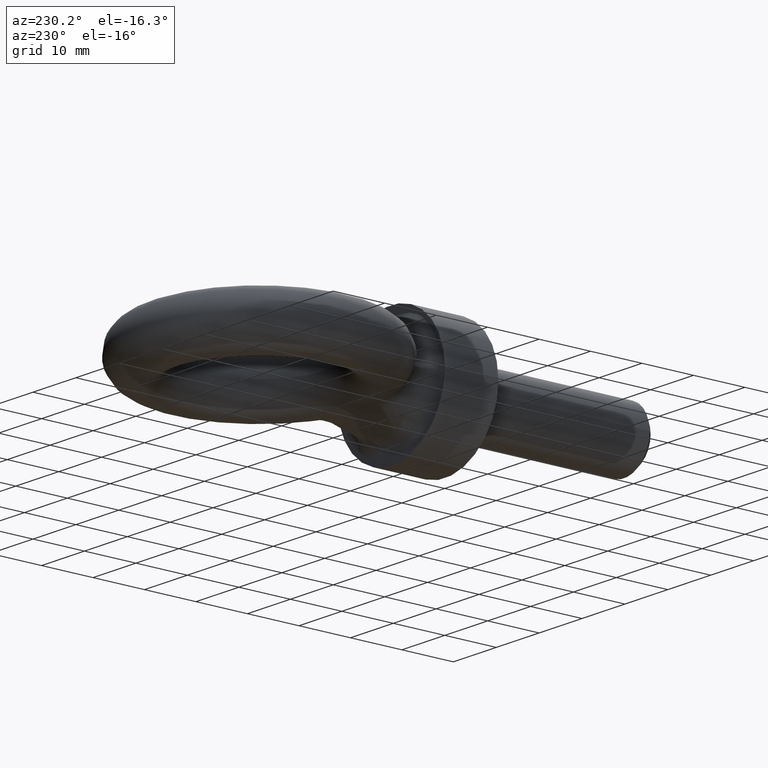
[diagram: clean part render]
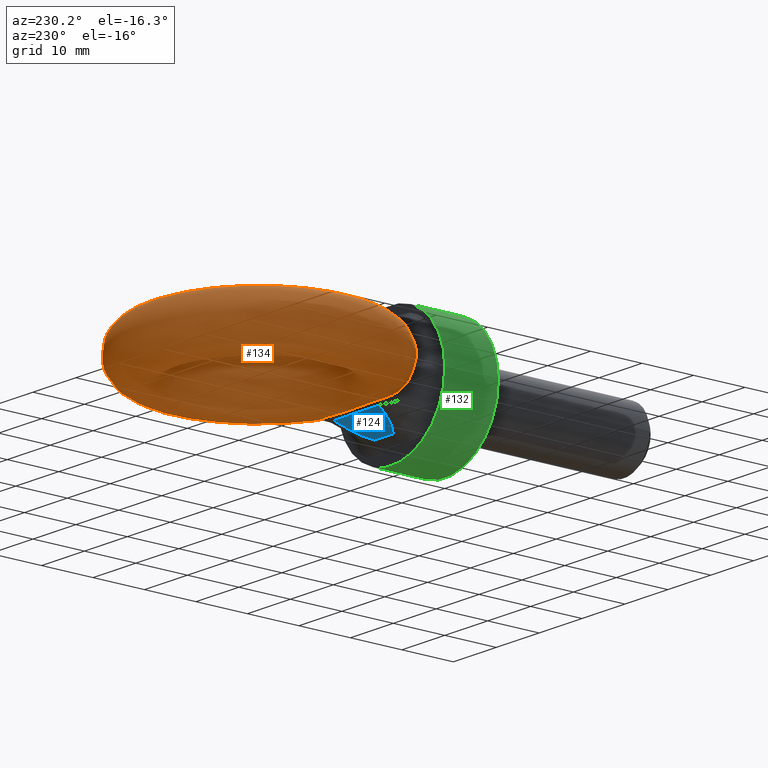
[diagram: same view with three faces highlighted in distinct colors, each labeled with its STEP entity id]
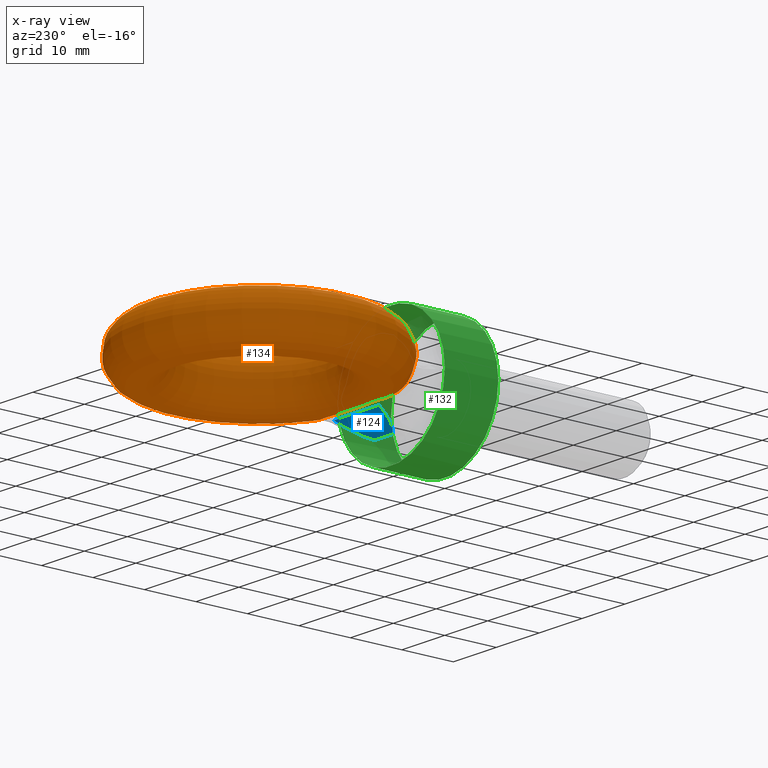
[diagram: x-ray of the same camera — body ghosted, the three highlighted faces saturated]
A machine part, auxiliary view with three faces highlighted in distinct colors.
The next image is the same camera in x-ray (body ghosted, the three faces saturated) — at least one of them is partly hidden behind the body in this view.
Their STEP definitions:

[orange] entity #134 — the highlighted toroidal blend (fillet) surface has major radius 18.25 mm and minor (blend) radius 5.25 mm.
#75=TOROIDAL_SURFACE('',#689,18.25,5.25);
#134=ADVANCED_FACE('',(#194),#75,.T.);
#194=FACE_OUTER_BOUND('',#239,.T.);
#239=EDGE_LOOP('',(#373,#374,#375,#376,#377,#378,#379,#380,#381,#382,#383,
#384));
#373=ORIENTED_EDGE('',*,*,#542,.T.);
#374=ORIENTED_EDGE('',*,*,#584,.T.);
#375=ORIENTED_EDGE('',*,*,#585,.T.);
#376=ORIENTED_EDGE('',*,*,#586,.T.);
#377=ORIENTED_EDGE('',*,*,#587,.T.);
#378=ORIENTED_EDGE('',*,*,#588,.T.);
#379=ORIENTED_EDGE('',*,*,#533,.T.);
#380=ORIENTED_EDGE('',*,*,#589,.T.);
#381=ORIENTED_EDGE('',*,*,#590,.T.);
#382=ORIENTED_EDGE('',*,*,#591,.T.);
#383=ORIENTED_EDGE('',*,*,#592,.T.);
#384=ORIENTED_EDGE('',*,*,#593,.T.);
#483=VERTEX_POINT('',#883);
#484=VERTEX_POINT('',#888);
#491=VERTEX_POINT('',#923);
#492=VERTEX_POINT('',#928);
#523=VERTEX_POINT('',#1228);
#524=VERTEX_POINT('',#1233);
#525=VERTEX_POINT('',#1240);
#526=VERTEX_POINT('',#1247);
#527=VERTEX_POINT('',#1276);
#528=VERTEX_POINT('',#1281);
#529=VERTEX_POINT('',#1288);
#530=VERTEX_POINT('',#1295);
#533=EDGE_CURVE('',#484,#483,#619,.T.);
#542=EDGE_CURVE('',#492,#491,#622,.T.);
#584=EDGE_CURVE('',#491,#523,#642,.T.);
#585=EDGE_CURVE('',#523,#524,#643,.T.);
#586=EDGE_CURVE('',#524,#525,#644,.T.);
#587=EDGE_CURVE('',#525,#526,#645,.T.);
#588=EDGE_CURVE('',#526,#484,#646,.T.);
#589=EDGE_CURVE('',#483,#527,#647,.T.);
#590=EDGE_CURVE('',#527,#528,#648,.T.);
#591=EDGE_CURVE('',#528,#529,#649,.T.);
#592=EDGE_CURVE('',#529,#530,#650,.T.);
#593=EDGE_CURVE('',#530,#492,#651,.T.);
#619=B_SPLINE_CURVE_WITH_KNOTS('',3,(#884,#885,#886,#887),.UNSPECIFIED.,
 .F.,.F.,(4,4),(0.,1.),.UNSPECIFIED.);
#622=B_SPLINE_CURVE_WITH_KNOTS('',3,(#924,#925,#926,#927),.UNSPECIFIED.,
 .F.,.F.,(4,4),(0.,1.),.UNSPECIFIED.);
#642=B_SPLINE_CURVE_WITH_KNOTS('',3,(#1206,#1207,#1208,#1209,#1210,#1211,
#1212,#1213,#1214,#1215,#1216,#1217,#1218,#1219,#1220,#1221,#1222,#1223,
#1224,#1225,#1226,#1227),.UNSPECIFIED.,.F.,.F.,(4,3,3,3,3,3,3,4),(0.,0.0844317473210612,
0.304581855445916,0.498420281267643,0.516260411417847,0.686905413114511,
0.727982392938424,1.),.UNSPECIFIED.);
#643=B_SPLINE_CURVE_WITH_KNOTS('',3,(#1229,#1230,#1231,#1232),
 .UNSPECIFIED.,.F.,.F.,(4,4),(0.,1.),.UNSPECIFIED.);
#644=B_SPLINE_CURVE_WITH_KNOTS('',3,(#1234,#1235,#1236,#1237,#1238,#1239),
 .UNSPECIFIED.,.F.,.F.,(4,2,4),(0.,0.5,1.),.UNSPECIFIED.);
#645=B_SPLINE_CURVE_WITH_KNOTS('',3,(#1241,#1242,#1243,#1244,#1245,#1246),
 .UNSPECIFIED.,.F.,.F.,(4,2,4),(0.,0.5,1.),.UNSPECIFIED.);
#646=B_SPLINE_CURVE_WITH_KNOTS('',3,(#1248,#1249,#1250,#1251,#1252,#1253),
 .UNSPECIFIED.,.F.,.F.,(4,2,4),(0.,0.5,1.),.UNSPECIFIED.);
#647=B_SPLINE_CURVE_WITH_KNOTS('',3,(#1254,#1255,#1256,#1257,#1258,#1259,
#1260,#1261,#1262,#1263,#1264,#1265,#1266,#1267,#1268,#1269,#1270,#1271,
#1272,#1273,#1274,#1275),.UNSPECIFIED.,.F.,.F.,(4,3,3,3,3,3,3,4),(0.,0.172858284610541,
0.363484195181928,0.524702837725398,0.559235223550434,0.721650931491682,
0.772282589975963,1.),.UNSPECIFIED.);
#648=B_SPLINE_CURVE_WITH_KNOTS('',3,(#1277,#1278,#1279,#1280),
 .UNSPECIFIED.,.F.,.F.,(4,4),(0.,1.),.UNSPECIFIED.);
#649=B_SPLINE_CURVE_WITH_KNOTS('',3,(#1282,#1283,#1284,#1285,#1286,#1287),
 .UNSPECIFIED.,.F.,.F.,(4,2,4),(0.,0.5,1.),.UNSPECIFIED.);
#650=B_SPLINE_CURVE_WITH_KNOTS('',3,(#1289,#1290,#1291,#1292,#1293,#1294),
 .UNSPECIFIED.,.F.,.F.,(4,2,4),(0.,0.5,1.),.UNSPECIFIED.);
#651=B_SPLINE_CURVE_WITH_KNOTS('',3,(#1296,#1297,#1298,#1299,#1300,#1301),
 .UNSPECIFIED.,.F.,.F.,(4,2,4),(0.,0.5,1.),.UNSPECIFIED.);
#689=AXIS2_PLACEMENT_3D('',#1302,#803,#804);
#803=DIRECTION('',(0.,0.,-1.));
#804=DIRECTION('',(-1.,0.,0.));
#883=CARTESIAN_POINT('',(10.1751658689635,15.2106807538112,1.98774862684781));
#884=CARTESIAN_POINT('',(9.12680839878912,16.5594193484176,4.16898889559012));
#885=CARTESIAN_POINT('',(9.51017883296229,15.9164642360037,3.59902631995501));
#886=CARTESIAN_POINT('',(9.92017274677964,15.478170038554,2.84820347276941));
#887=CARTESIAN_POINT('',(10.1751658689635,15.2106807538112,1.98774862684782));
#888=CARTESIAN_POINT('',(9.12680839878912,16.5594193484176,4.16898889559012));
#923=CARTESIAN_POINT('',(-10.2092429928975,15.2327507880229,-1.81008757908646));
#924=CARTESIAN_POINT('',(-9.13152703209519,16.6053220422383,-4.14452171013093));
#925=CARTESIAN_POINT('',(-9.53483343757913,15.9332567634735,-3.53793230910773));
#926=CARTESIAN_POINT('',(-9.96418158107147,15.4866501273962,-2.72573611420768));
#927=CARTESIAN_POINT('',(-10.2092429928975,15.2327507880229,-1.81008757908646));
#928=CARTESIAN_POINT('',(-9.13152703209519,16.6053220422383,-4.14452171013093));
#1206=CARTESIAN_POINT('',(-10.2092429928975,15.2327507880229,-1.81008757908646));
#1207=CARTESIAN_POINT('',(-10.2947225303325,15.2421647414669,-1.72970328025904));
#1208=CARTESIAN_POINT('',(-10.3768083563959,15.2512720284918,-1.6454481778784));
#1209=CARTESIAN_POINT('',(-10.4542973578134,15.2599190147135,-1.55725694460596));
#1210=CARTESIAN_POINT('',(-10.654180216589,15.282223913398,-1.32976768157543));
#1211=CARTESIAN_POINT('',(-10.8268904719467,15.3018550426031,-1.07061569303797));
#1212=CARTESIAN_POINT('',(-10.9424413288205,15.3150617350583,-0.790123958254311));
#1213=CARTESIAN_POINT('',(-11.0439366700155,15.3266619757927,-0.543751018282601));
#1214=CARTESIAN_POINT('',(-11.1022233847588,15.3333901627485,-0.273210478975317));
#1215=CARTESIAN_POINT('',(-11.1031043844528,15.3334915871443,-0.00649956998896742));
#1216=CARTESIAN_POINT('',(-11.1031871052505,15.3335011103109,0.0185430484171998));
#1217=CARTESIAN_POINT('',(-11.1027914660236,15.333455560969,0.0435918811405311));
#1218=CARTESIAN_POINT('',(-11.1019185099568,15.33335506785,0.0686192165739424));
#1219=CARTESIAN_POINT('',(-11.0936963924626,15.3324085525972,0.304344358232179));
#1220=CARTESIAN_POINT('',(-11.0411314279582,15.3263471884072,0.541351935419857));
#1221=CARTESIAN_POINT('',(-10.9544134166439,15.3164304416693,0.760478579543384));
#1222=CARTESIAN_POINT('',(-10.9332567738041,15.3140110472934,0.813939032293196));
#1223=CARTESIAN_POINT('',(-10.9100654611072,15.3113624908358,0.866623079653799));
#1224=CARTESIAN_POINT('',(-10.8850580389048,15.3085119071968,0.918372282752246));
#1225=CARTESIAN_POINT('',(-10.7226109833609,15.2899946480013,1.25453270752718));
#1226=CARTESIAN_POINT('',(-10.4806875878877,15.262645273376,1.55482317203286));
#1227=CARTESIAN_POINT('',(-10.2092429928824,15.2327507880213,1.81008757910062));
#1228=CARTESIAN_POINT('',(-10.2092429928843,15.2327507880366,1.81008757913571));
#1229=CARTESIAN_POINT('',(-10.2092429928843,15.2327507880366,1.81008757913571));
#1230=CARTESIAN_POINT('',(-9.96415163098847,15.4866811576039,2.72584801980319));
#1231=CARTESIAN_POINT('',(-9.53649521315012,15.9304875992669,3.53543293038592));
#1232=CARTESIAN_POINT('',(-9.13152703209518,16.6053220422383,4.14452171013093));
#1233=CARTESIAN_POINT('',(-9.13152703209518,16.6053220422383,4.14452171013094));
#1234=CARTESIAN_POINT('',(-9.13152703209518,16.6053220422383,4.14452171013093));
#1235=CARTESIAN_POINT('',(-8.80656744206388,17.1468310648873,4.6332742823528));
#1236=CARTESIAN_POINT('',(-8.23752717506868,17.65999926443,4.93798496737469));
#1237=CARTESIAN_POINT('',(-6.86465082953896,18.3551850102802,5.23743672720217));
#1238=CARTESIAN_POINT('',(-6.04929483048205,18.5174604033747,5.24574484612284));
#1239=CARTESIAN_POINT('',(-5.25725745016382,18.4359634411546,5.24888602379858));
#1240=CARTESIAN_POINT('',(-5.25725745016382,18.4359634411546,5.24888602379858));
#1241=CARTESIAN_POINT('',(-5.25725745016382,18.4359634411546,5.24888602379858));
#1242=CARTESIAN_POINT('',(-3.50870571920381,18.2560456015436,5.2558206859732));
#1243=CARTESIAN_POINT('',(-1.75443693681847,18.2119517395293,5.23036580910344));
#1244=CARTESIAN_POINT('',(1.75790939574807,18.2086357861418,5.22923333472979));
#1245=CARTESIAN_POINT('',(3.5123479698694,18.2481876883925,5.25427686885439));
#1246=CARTESIAN_POINT('',(5.26165407978908,18.4195873396341,5.24943414642928));
#1247=CARTESIAN_POINT('',(5.26165407978907,18.4195873396341,5.24943414642928));
#1248=CARTESIAN_POINT('',(5.26165407978907,18.4195873396341,5.24943414642928));
#1249=CARTESIAN_POINT('',(6.05279634133119,18.4971046517511,5.24724397379472));
#1250=CARTESIAN_POINT('',(6.85614102051733,18.3329007585816,5.24359846573583));
#1251=CARTESIAN_POINT('',(8.23889045003551,17.6207000249211,4.95073549139836));
#1252=CARTESIAN_POINT('',(8.8020050844068,17.1041508480221,4.65187885563488));
#1253=CARTESIAN_POINT('',(9.12680839878912,16.5594193484176,4.16898889559012));
#1254=CARTESIAN_POINT('',(10.1751658689635,15.2106807538112,1.98774862684781));
#1255=CARTESIAN_POINT('',(10.3828693830783,15.2332956256198,1.81575860764232));
#1256=CARTESIAN_POINT('',(10.5769316828252,15.2548438222433,1.62379597093491));
#1257=CARTESIAN_POINT('',(10.7430394181909,15.2734955152738,1.41097425327519));
#1258=CARTESIAN_POINT('',(10.9249767670006,15.2939246637015,1.1778712072619));
#1259=CARTESIAN_POINT('',(11.0765134955674,15.3112268239368,0.913192329669781));
#1260=CARTESIAN_POINT('',(11.1683853375131,15.3217552608477,0.631582145671107));
#1261=CARTESIAN_POINT('',(11.2460908151417,15.330660244154,0.393395413052312));
#1262=CARTESIAN_POINT('',(11.2817706676955,15.3347817197351,0.136373897332324));
#1263=CARTESIAN_POINT('',(11.267275577782,15.3331132260796,-0.113900887802176));
#1264=CARTESIAN_POINT('',(11.2641160345062,15.3327495389317,-0.168454120599337));
#1265=CARTESIAN_POINT('',(11.2586827706714,15.3321241684495,-0.222920131410865));
#1266=CARTESIAN_POINT('',(11.25104225885,15.3312453199682,-0.277022075878036));
#1267=CARTESIAN_POINT('',(11.2156596720498,15.3271754443629,-0.52756376613753));
#1268=CARTESIAN_POINT('',(11.1306339677975,15.3173955974433,-0.773822358306856));
#1269=CARTESIAN_POINT('',(11.0126203241144,15.3039684684542,-0.99727732470042));
#1270=CARTESIAN_POINT('',(10.9753516210904,15.2997281817623,-1.06784439238726));
#1271=CARTESIAN_POINT('',(10.9346974011096,15.2951139136688,-1.13668409629671));
#1272=CARTESIAN_POINT('',(10.8912281787426,15.2901968668221,-1.20356381411422));
#1273=CARTESIAN_POINT('',(10.698149938483,15.2683567072621,-1.50062498802321));
#1274=CARTESIAN_POINT('',(10.4476110330423,15.24034473175,-1.76214893393157));
#1275=CARTESIAN_POINT('',(10.1751658689478,15.2106807538095,-1.98774862686082));
#1276=CARTESIAN_POINT('',(10.1751658689488,15.2106807538267,-1.98774862689752));
#1277=CARTESIAN_POINT('',(10.1751658689488,15.2106807538266,-1.98774862689752));
#1278=CARTESIAN_POINT('',(9.92181744953446,15.4764447356931,-2.84265354871995));
#1279=CARTESIAN_POINT('',(9.51170462604495,15.9139053102871,-3.59675790048975));
#1280=CARTESIAN_POINT('',(9.12680839878912,16.5594193484176,-4.16898889559011));
#1281=CARTESIAN_POINT('',(9.12680839878912,16.5594193484176,-4.16898889559011));
#1282=CARTESIAN_POINT('',(9.12680839878912,16.5594193484176,-4.16898889559011));
#1283=CARTESIAN_POINT('',(8.80168070454394,17.1046948693459,-4.65236111604304));
#1284=CARTESIAN_POINT('',(8.23459330073939,17.6221726727106,-4.95110855406581));
#1285=CARTESIAN_POINT('',(6.86713774140462,18.3279738015473,-5.24180382659267));
#1286=CARTESIAN_POINT('',(6.05350324974561,18.4971739157038,-5.24724201681234));
#1287=CARTESIAN_POINT('',(5.26165407978906,18.4195873396341,-5.24943414642928));
#1288=CARTESIAN_POINT('',(5.26165407978906,18.4195873396341,-5.24943414642928));
#1289=CARTESIAN_POINT('',(5.26165407978906,18.4195873396341,-5.24943414642928));
#1290=CARTESIAN_POINT('',(3.51234728622489,18.248187621408,-5.25427687074696));
#1291=CARTESIAN_POINT('',(1.75790941599506,18.2086358104435,-5.22923334301907));
#1292=CARTESIAN_POINT('',(-1.75443455266028,18.2119517129578,-5.23036580003898));
#1293=CARTESIAN_POINT('',(-3.50870646972062,18.2560456787683,-5.25582068299669));
#1294=CARTESIAN_POINT('',(-5.25725745016382,18.4359634411546,-5.24888602379858));
#1295=CARTESIAN_POINT('',(-5.25725745016382,18.4359634411546,-5.24888602379858));
#1296=CARTESIAN_POINT('',(-5.25725745016382,18.4359634411546,-5.24888602379858));
#1297=CARTESIAN_POINT('',(-6.04856813964922,18.5173856302682,-5.24574772813962));
#1298=CARTESIAN_POINT('',(-6.8530426542071,18.3602654681186,-5.23938281062005));
#1299=CARTESIAN_POINT('',(-8.24197695083889,17.658539516691,-4.9375972604449));
#1300=CARTESIAN_POINT('',(-8.80688940925711,17.1462945423613,-4.63279003046839));
#1301=CARTESIAN_POINT('',(-9.13152703209518,16.6053220422383,-4.14452171013093));
#1302=CARTESIAN_POINT('',(0.0837289890841773,36.,0.));

[blue] entity #124 — the highlighted planar face has unit normal (0, 0.4545, -0.8908).
#89=PLANE('',#674);
#94=LINE('',#974,#98);
#98=VECTOR('',#768,1.);
#115=ELLIPSE('',#672,13.2021816378961,6.);
#116=ELLIPSE('',#673,13.2021816378961,6.);
#124=ADVANCED_FACE('',(#187),#89,.T.);
#187=FACE_OUTER_BOUND('',#226,.T.);
#226=EDGE_LOOP('',(#331,#332,#333,#334));
#331=ORIENTED_EDGE('',*,*,#553,.T.);
#332=ORIENTED_EDGE('',*,*,#554,.T.);
#333=ORIENTED_EDGE('',*,*,#555,.T.);
#334=ORIENTED_EDGE('',*,*,#556,.T.);
#501=VERTEX_POINT('',#972);
#502=VERTEX_POINT('',#973);
#503=VERTEX_POINT('',#975);
#504=VERTEX_POINT('',#977);
#553=EDGE_CURVE('',#501,#502,#115,.T.);
#554=EDGE_CURVE('',#502,#503,#94,.T.);
#555=EDGE_CURVE('',#503,#504,#116,.T.);
#556=EDGE_CURVE('',#504,#501,#625,.T.);
#625=B_SPLINE_CURVE_WITH_KNOTS('',3,(#978,#979,#980,#981,#982,#983,#984),
 .UNSPECIFIED.,.F.,.F.,(4,3,4),(0.,0.499937293540942,1.),.UNSPECIFIED.);
#672=AXIS2_PLACEMENT_3D('',#971,#766,#767);
#673=AXIS2_PLACEMENT_3D('',#976,#769,#770);
#674=AXIS2_PLACEMENT_3D('',#985,#771,#772);
#766=DIRECTION('',(0.,0.454470341687874,-0.890761869708233));
#767=DIRECTION('',(-1.09804000302255E-18,0.890761869708233,0.454470341687874));
#768=DIRECTION('',(-1.,-9.780921661068E-19,-4.99026615360612E-19));
#769=DIRECTION('',(0.,0.454470341687874,-0.890761869708233));
#770=DIRECTION('',(-1.09804000302255E-18,0.890761869708233,0.454470341687874));
#771=DIRECTION('',(0.,0.454470341687874,-0.890761869708233));
#772=DIRECTION('',(0.,0.890761869708233,0.454470341687874));
#971=CARTESIAN_POINT('',(-3.60809317146638E-18,22.8023202061156,-2.6722856091247));
#972=CARTESIAN_POINT('',(5.27254256580204,17.1896334291468,-5.53590131165981));
#973=CARTESIAN_POINT('',(2.16160478669443,11.8320153530693,-8.2693799219034));
#974=CARTESIAN_POINT('',(25.,11.8320153530693,-8.26937992190341));
#975=CARTESIAN_POINT('',(-2.16160478669443,11.8320153530693,-8.2693799219034));
#976=CARTESIAN_POINT('',(-3.60809317146638E-18,22.8023202061156,-2.6722856091247));
#977=CARTESIAN_POINT('',(-5.27298902615248,17.191244909681,-5.53507912771376));
#978=CARTESIAN_POINT('',(-5.27298902615248,17.191244909681,-5.53507912771376));
#979=CARTESIAN_POINT('',(-3.51560588308606,17.1713659262063,-5.5452214662213));
#980=CARTESIAN_POINT('',(-1.75831453476253,17.2455929801722,-5.50735052032033));
#981=CARTESIAN_POINT('',(-0.000790811685511706,17.2473555568419,-5.50645124650922));
#982=CARTESIAN_POINT('',(1.75711857817669,17.2491185202873,-5.50555177536363));
#983=CARTESIAN_POINT('',(3.51470141175344,17.1757244973813,-5.54299770541773));
#984=CARTESIAN_POINT('',(5.27254256580204,17.1896334291468,-5.53590131165981));
#985=CARTESIAN_POINT('',(25.,17.75,-5.25));

[green] entity #132 — the highlighted cylindrical surface (bore or boss wall) has radius 12.5 mm, axis along (-0, 1, 0).
#84=FACE_BOUND('',#236,.T.);
#85=FACE_BOUND('',#237,.T.);
#106=CYLINDRICAL_SURFACE('',#683,12.5);
#132=ADVANCED_FACE('',(#84,#85),#106,.T.);
#236=EDGE_LOOP('',(#356,#357));
#237=EDGE_LOOP('',(#358));
#277=CIRCLE('',#680,12.5);
#278=CIRCLE('',#682,12.5);
#356=ORIENTED_EDGE('',*,*,#569,.F.);
#357=ORIENTED_EDGE('',*,*,#570,.T.);
#358=ORIENTED_EDGE('',*,*,#568,.T.);
#508=VERTEX_POINT('',#1147);
#509=VERTEX_POINT('',#1150);
#510=VERTEX_POINT('',#1151);
#568=EDGE_CURVE('',#508,#508,#277,.T.);
#569=EDGE_CURVE('',#509,#510,#278,.T.);
#570=EDGE_CURVE('',#509,#510,#634,.T.);
#634=B_SPLINE_CURVE_WITH_KNOTS('',3,(#1152,#1153,#1154,#1155),
 .UNSPECIFIED.,.F.,.F.,(4,4),(0.,1.),.UNSPECIFIED.);
#680=AXIS2_PLACEMENT_3D('',#1146,#783,#784);
#682=AXIS2_PLACEMENT_3D('',#1149,#787,#788);
#683=AXIS2_PLACEMENT_3D('',#1156,#789,#790);
#783=DIRECTION('',(-9.780921661068E-19,1.,0.));
#784=DIRECTION('',(-1.,-9.780921661068E-19,0.));
#787=DIRECTION('',(-9.780921661068E-19,1.,0.));
#788=DIRECTION('',(-1.,0.,0.));
#789=DIRECTION('',(-9.780921661068E-19,1.,0.));
#790=DIRECTION('',(-1.,0.,0.));
#1146=CARTESIAN_POINT('',(1.73611359483957E-17,0.,0.));
#1147=CARTESIAN_POINT('',(-12.5,-1.2226152076335E-17,0.));
#1149=CARTESIAN_POINT('',(7.18897742088498E-18,10.4,0.));
#1150=CARTESIAN_POINT('',(12.4913783515275,10.4,-0.464184100320706));
#1151=CARTESIAN_POINT('',(12.4913783515268,10.4,0.464184100338081));
#1152=CARTESIAN_POINT('',(12.4913783515275,10.4,-0.464184100320706));
#1153=CARTESIAN_POINT('',(12.5029321697829,10.4,-0.153266265922499));
#1154=CARTESIAN_POINT('',(12.5028240385471,10.4000000000007,0.156176120401715));
#1155=CARTESIAN_POINT('',(12.4913783515268,10.4,0.464184100338081));
#1156=CARTESIAN_POINT('',(5.25724539282405E-17,-36.,0.));